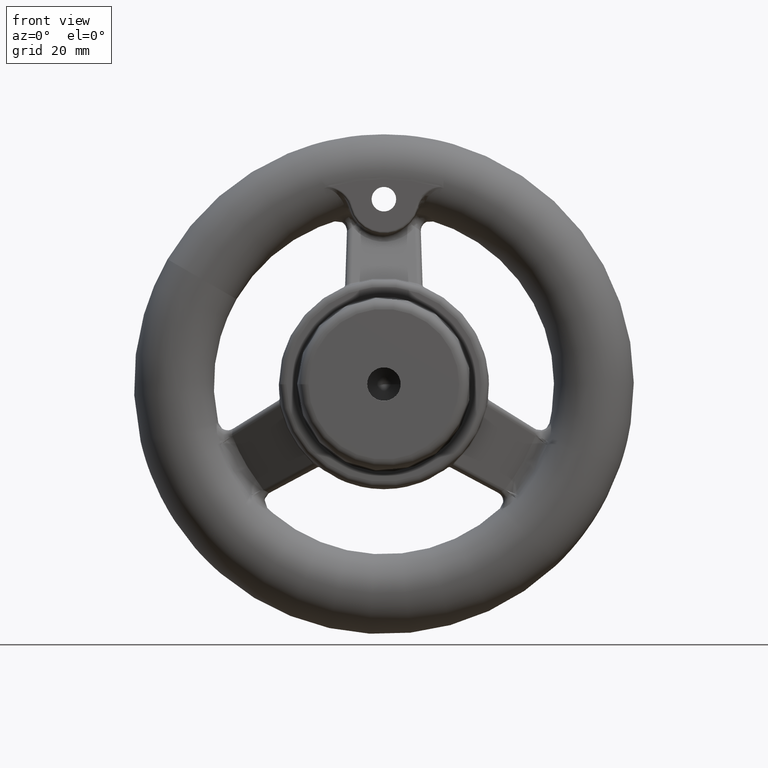
[diagram: clean part render]
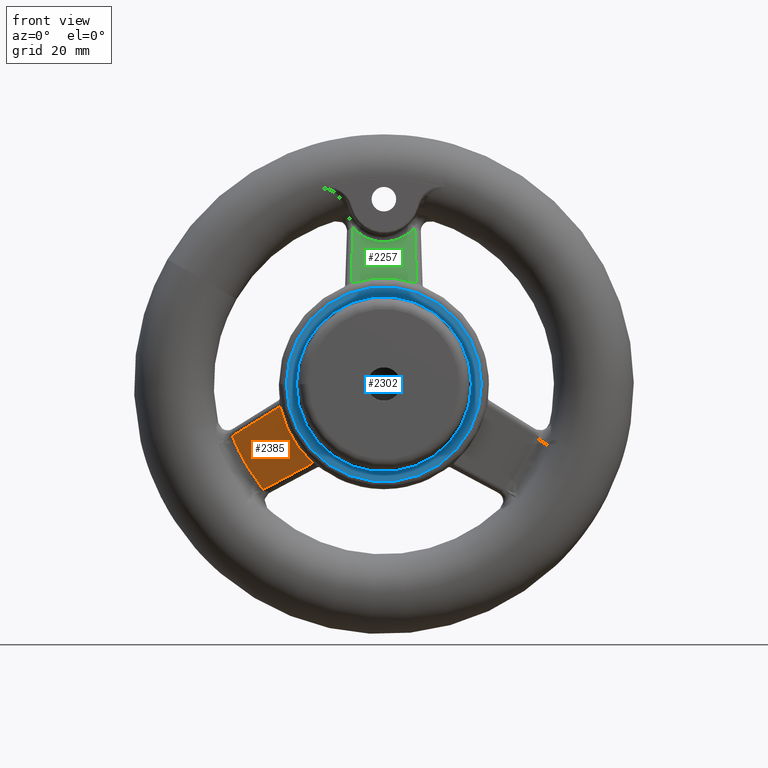
[diagram: same view with three faces highlighted in distinct colors, each labeled with its STEP entity id]
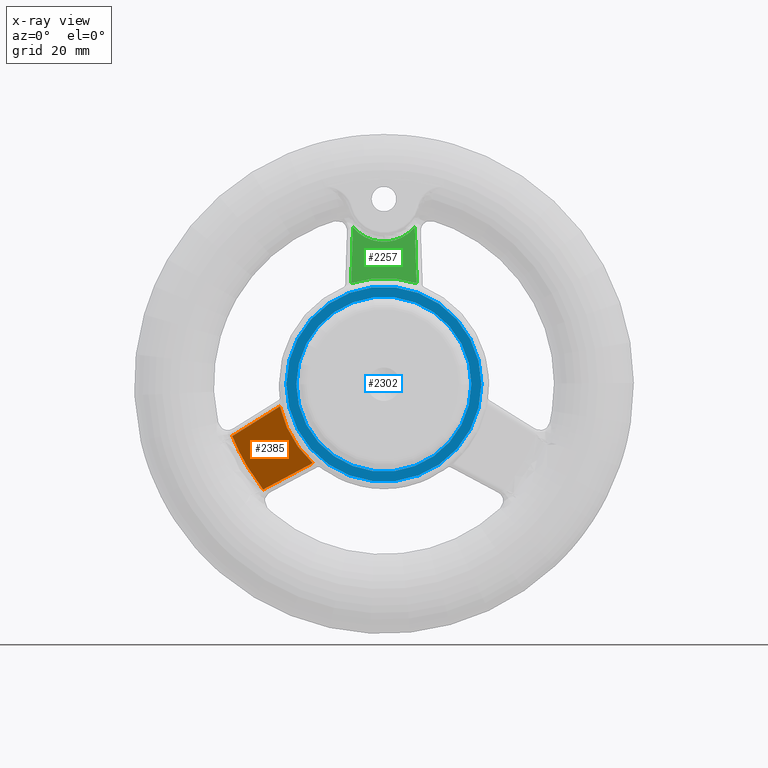
[diagram: x-ray of the same camera — body ghosted, the three highlighted faces saturated]
A machine part, front view with three faces highlighted in distinct colors.
The next image is the same camera in x-ray (body ghosted, the three faces saturated) — at least one of them is partly hidden behind the body in this view.
Their STEP definitions:

[orange] entity #2385 — the highlighted planar face has unit normal (0.4481, 0.8557, 0.2587).
#48=LINE('',#6227,#88);
#51=LINE('',#6826,#91);
#88=VECTOR('',#2999,13.1305020818754);
#91=VECTOR('',#3036,13.1305020818766);
#107=ELLIPSE('',#2564,25.1254021311888,21.5);
#280=B_SPLINE_CURVE_WITH_KNOTS('',3,(#7372,#7373,#7374,#7375),
 .UNSPECIFIED.,.F.,.F.,(4,4),(18.8938483633514,20.1336066800503),
 .UNSPECIFIED.);
#393=PLANE('',#2602);
#608=FACE_OUTER_BOUND('',#782,.T.);
#782=EDGE_LOOP('',(#2202,#2203,#2204,#2205));
#1121=VERTEX_POINT('',#6082);
#1123=VERTEX_POINT('',#6112);
#1131=VERTEX_POINT('',#6226);
#1135=VERTEX_POINT('',#6747);
#1438=EDGE_CURVE('',#1123,#1121,#107,.T.);
#1453=EDGE_CURVE('',#1121,#1131,#48,.T.);
#1479=EDGE_CURVE('',#1135,#1123,#51,.T.);
#1501=EDGE_CURVE('',#1131,#1135,#280,.T.);
#2202=ORIENTED_EDGE('',*,*,#1438,.F.);
#2203=ORIENTED_EDGE('',*,*,#1479,.F.);
#2204=ORIENTED_EDGE('',*,*,#1501,.F.);
#2205=ORIENTED_EDGE('',*,*,#1453,.F.);
#2385=ADVANCED_FACE('',(#608),#393,.F.);
#2564=AXIS2_PLACEMENT_3D('',#6114,#2975,#2976);
#2602=AXIS2_PLACEMENT_3D('',#7376,#3064,#3065);
#2975=DIRECTION('center_axis',(-0.448133074720544,-0.855707697243641,-0.258729751322681));
#2976=DIRECTION('ref_axis',(-0.741064604026876,0.517459502645362,-0.427853848621821));
#2999=DIRECTION('',(-0.755126512754924,0.517245812246452,-0.402791161084868));
#3036=DIRECTION('',(0.726390634296787,-0.517245812246452,0.452563162574484));
#3064=DIRECTION('center_axis',(0.448133074720544,0.855707697243641,0.258729751322681));
#3065=DIRECTION('ref_axis',(0.5,0.,-0.866025403784438));
#6082=CARTESIAN_POINT('',(-14.2380411103455,-7.57505396636503,-15.7796716252135));
#6112=CARTESIAN_POINT('',(-20.7846170459842,-7.57505396636503,-4.44066948907969));
#6114=CARTESIAN_POINT('Origin',(0.224066537360274,-19.959060629967,0.129364875661342));
#6226=CARTESIAN_POINT('',(-24.1532313581534,-0.783356751821642,-21.0685218043994));
#6227=CARTESIAN_POINT('',(-13.7602308220186,-7.90234398533644,-15.5248033911326));
#6747=CARTESIAN_POINT('',(-30.3224907818722,-0.783356751821063,-10.3830510374473));
#6826=CARTESIAN_POINT('',(-20.8207345197707,-7.54933555648621,-4.46317175905574));
#7372=CARTESIAN_POINT('Ctrl Pts',(-24.1532313581534,-0.783356751821647,
-21.0685218043994));
#7373=CARTESIAN_POINT('Ctrl Pts',(-26.7021926468127,-0.426089851319648,
-17.8351950662723));
#7374=CARTESIAN_POINT('Ctrl Pts',(-28.7969164342332,-0.426110482307063,
-14.2069588049118));
#7375=CARTESIAN_POINT('Ctrl Pts',(-30.3224907818729,-0.78335675182165,-10.3830510374441));
#7376=CARTESIAN_POINT('Origin',(-20.7777549529655,-8.,-3.04711324281153));

[blue] entity #2302 — the highlighted planar face has unit normal (0, -1, 0).
#383=PLANE('',#2509);
#425=FACE_BOUND('',#698,.T.);
#525=FACE_OUTER_BOUND('',#697,.T.);
#697=EDGE_LOOP('',(#1861));
#698=EDGE_LOOP('',(#1862));
#797=CIRCLE('',#2405,17.5);
#859=CIRCLE('',#2500,19.5);
#933=VERTEX_POINT('',#3094);
#1059=VERTEX_POINT('',#4896);
#1146=EDGE_CURVE('',#933,#933,#797,.T.);
#1332=EDGE_CURVE('',#1059,#1059,#859,.T.);
#1861=ORIENTED_EDGE('',*,*,#1332,.F.);
#1862=ORIENTED_EDGE('',*,*,#1146,.T.);
#2302=ADVANCED_FACE('',(#525,#425),#383,.T.);
#2405=AXIS2_PLACEMENT_3D('',#3095,#2630,#2631);
#2500=AXIS2_PLACEMENT_3D('',#4897,#2832,#2833);
#2509=AXIS2_PLACEMENT_3D('',#4997,#2856,#2857);
#2630=DIRECTION('center_axis',(0.,1.,0.));
#2631=DIRECTION('ref_axis',(-1.,0.,0.));
#2832=DIRECTION('center_axis',(0.,1.,0.));
#2833=DIRECTION('ref_axis',(1.,0.,0.));
#2856=DIRECTION('center_axis',(0.,-1.,0.));
#2857=DIRECTION('ref_axis',(0.,0.,-1.));
#3094=CARTESIAN_POINT('',(-17.5,-10.,0.));
#3095=CARTESIAN_POINT('Origin',(0.,-10.,0.));
#4896=CARTESIAN_POINT('',(-19.5,-10.,2.38806125833734E-15));
#4897=CARTESIAN_POINT('Origin',(0.,-10.,0.));
#4997=CARTESIAN_POINT('Origin',(-21.,-10.,0.));

[green] entity #2257 — the highlighted planar face has unit normal (0, 0.8557, -0.5175).
#15=LINE('',#3879,#55);
#17=LINE('',#3890,#57);
#55=VECTOR('',#2676,13.0606413092025);
#57=VECTOR('',#2680,13.0606413092025);
#96=ELLIPSE('',#2420,9.34898683951209,8.);
#97=ELLIPSE('',#2429,25.1254021311888,21.5);
#379=PLANE('',#2428);
#481=FACE_OUTER_BOUND('',#646,.T.);
#646=EDGE_LOOP('',(#1588,#1589,#1590,#1591));
#953=VERTEX_POINT('',#3514);
#956=VERTEX_POINT('',#3519);
#969=VERTEX_POINT('',#3878);
#971=VERTEX_POINT('',#3889);
#1176=EDGE_CURVE('',#956,#953,#96,.T.);
#1199=EDGE_CURVE('',#953,#969,#15,.T.);
#1202=EDGE_CURVE('',#971,#956,#17,.T.);
#1203=EDGE_CURVE('',#969,#971,#97,.T.);
#1588=ORIENTED_EDGE('',*,*,#1176,.F.);
#1589=ORIENTED_EDGE('',*,*,#1202,.F.);
#1590=ORIENTED_EDGE('',*,*,#1203,.F.);
#1591=ORIENTED_EDGE('',*,*,#1199,.F.);
#2257=ADVANCED_FACE('',(#481),#379,.F.);
#2420=AXIS2_PLACEMENT_3D('',#3521,#2660,#2661);
#2428=AXIS2_PLACEMENT_3D('',#3888,#2678,#2679);
#2429=AXIS2_PLACEMENT_3D('',#3891,#2681,#2682);
#2660=DIRECTION('center_axis',(0.,-0.855707697243641,0.517459502645362));
#2661=DIRECTION('ref_axis',(0.,-0.517459502645362,-0.855707697243641));
#2676=DIRECTION('',(0.0287358784581362,-0.517245812246452,-0.855354323659352));
#2678=DIRECTION('center_axis',(0.,0.855707697243641,-0.517459502645362));
#2679=DIRECTION('ref_axis',(-1.,0.,0.));
#2680=DIRECTION('',(0.0287358784581362,0.517245812246452,0.855354323659352));
#2681=DIRECTION('center_axis',(0.,-0.855707697243641,0.517459502645362));
#2682=DIRECTION('ref_axis',(0.,0.517459502645362,0.855707697243641));
#3514=CARTESIAN_POINT('',(6.17126693439205,-0.819491943927008,31.3918171278835));
#3519=CARTESIAN_POINT('',(-6.17126693439205,-0.819491943927011,31.3918171278835));
#3521=CARTESIAN_POINT('Origin',(0.,2.25894616216567,36.4825404973546));
#3878=CARTESIAN_POINT('',(6.54657593563861,-7.57505396636503,20.2203411142932));
#3879=CARTESIAN_POINT('',(6.54514713508978,-7.54933555648621,20.2628708991008));
#3888=CARTESIAN_POINT('Origin',(7.75,-8.,19.5176202442818));
#3889=CARTESIAN_POINT('',(-6.5465759356386,-7.57505396636502,20.2203411142932));
#3890=CARTESIAN_POINT('',(-6.56475871447035,-7.90234398533644,19.6791111493721));
#3891=CARTESIAN_POINT('Origin',(0.,-19.959060629967,-0.258729751322681));